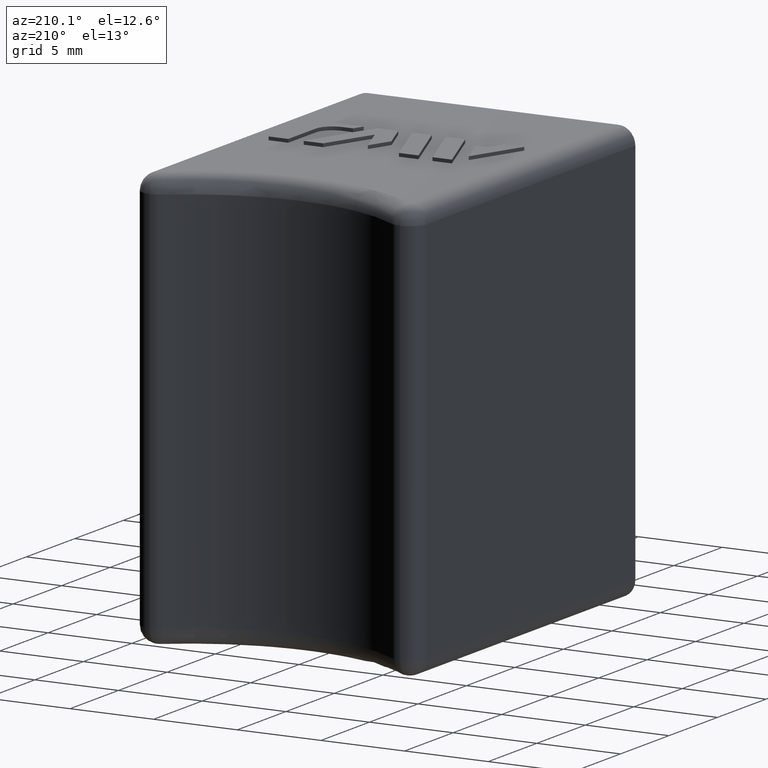
[diagram: clean part render]
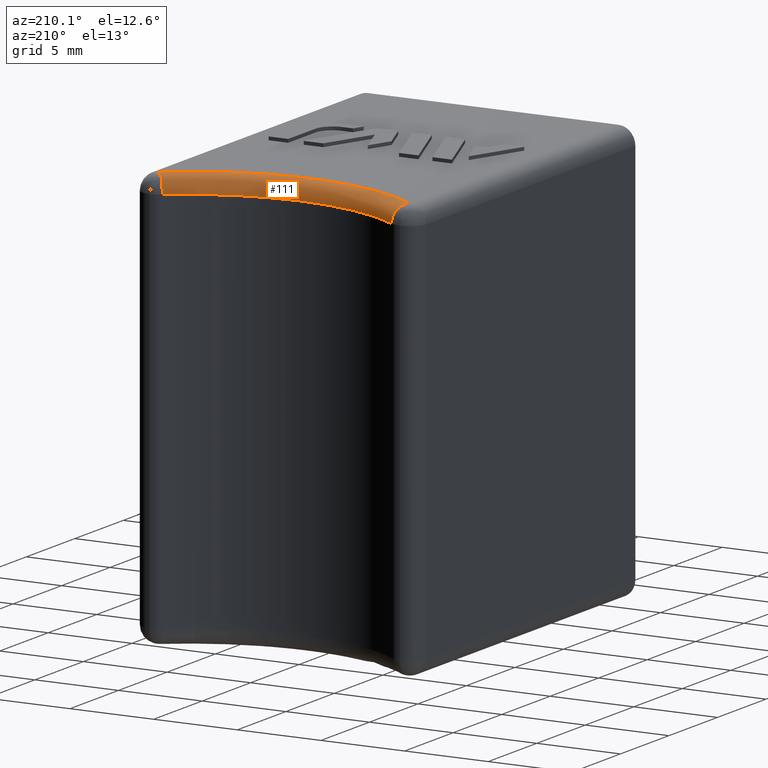
[diagram: same view with one face highlighted and labeled with its STEP entity id]
A machine part, auxiliary view. The second image highlights one B-rep face of the part: STEP entity #111.
In plain terms, the highlighted toroidal blend (fillet) surface has major radius 12.36 mm and minor (blend) radius 1 mm.
Its self-contained STEP definition (entity closure, byte-faithful):
#111 = ADVANCED_FACE( '', ( #306 ), #307, .T. );
#306 = FACE_OUTER_BOUND( '', #604, .T. );
#307 = TOROIDAL_SURFACE( '', #605, 12.3600000000000, 1.00000000000000 );
#604 = EDGE_LOOP( '', ( #1165, #1166, #1167, #1168 ) );
#605 = AXIS2_PLACEMENT_3D( '', #1169, #1170, #1171 );
#1165 = ORIENTED_EDGE( '', *, *, #2089, .T. );
#1166 = ORIENTED_EDGE( '', *, *, #2064, .F. );
#1167 = ORIENTED_EDGE( '', *, *, #2091, .F. );
#1168 = ORIENTED_EDGE( '', *, *, #1932, .F. );
#1169 = CARTESIAN_POINT( '', ( 0.000000000000000, 31.3600000000000, 11.5000000000000 ) );
#1170 = DIRECTION( '', ( 0.000000000000000, 0.000000000000000, -1.00000000000000 ) );
#1171 = DIRECTION( '', ( -1.00000000000000, 0.000000000000000, 0.000000000000000 ) );
#1932 = EDGE_CURVE( '', #2296, #2297, #2298, .T. );
#2064 = EDGE_CURVE( '', #2506, #2537, #2538, .F. );
#2089 = EDGE_CURVE( '', #2296, #2537, #2575, .F. );
#2091 = EDGE_CURVE( '', #2297, #2506, #2577, .T. );
#2296 = VERTEX_POINT( '', #2874 );
#2297 = VERTEX_POINT( '', #2875 );
#2298 = CIRCLE( '', #2876, 12.3600000000000 );
#2506 = VERTEX_POINT( '', #3178 );
#2537 = VERTEX_POINT( '', #3220 );
#2538 = CIRCLE( '', #3221, 11.3600000000000 );
#2575 = CIRCLE( '', #3272, 1.00000000000000 );
#2577 = CIRCLE( '', #3274, 1.00000000000000 );
#2874 = CARTESIAN_POINT( '', ( 7.45318723768588, 21.5000000000000, 12.5000000000000 ) );
#2875 = CARTESIAN_POINT( '', ( -7.45318723768588, 21.5000000000002, 12.5000000000000 ) );
#2876 = AXIS2_PLACEMENT_3D( '', #3638, #3639, #3640 );
#3178 = CARTESIAN_POINT( '', ( -6.85017856149749, 22.2977346278317, 11.5000000000000 ) );
#3220 = CARTESIAN_POINT( '', ( 6.85017856149749, 22.2977346278317, 11.5000000000000 ) );
#3221 = AXIS2_PLACEMENT_3D( '', #3824, #3825, #3826 );
#3272 = AXIS2_PLACEMENT_3D( '', #3871, #3872, #3873 );
#3274 = AXIS2_PLACEMENT_3D( '', #3877, #3878, #3879 );
#3638 = CARTESIAN_POINT( '', ( 0.000000000000000, 31.3600000000000, 12.5000000000000 ) );
#3639 = DIRECTION( '', ( 0.000000000000000, 0.000000000000000, -1.00000000000000 ) );
#3640 = DIRECTION( '', ( -1.00000000000000, 0.000000000000000, 0.000000000000000 ) );
#3824 = CARTESIAN_POINT( '', ( 0.000000000000000, 31.3600000000000, 11.5000000000000 ) );
#3825 = DIRECTION( '', ( 0.000000000000000, 0.000000000000000, -1.00000000000000 ) );
#3826 = DIRECTION( '', ( -1.00000000000000, 0.000000000000000, 0.000000000000000 ) );
#3871 = CARTESIAN_POINT( '', ( 7.45318723768565, 21.5000000000000, 11.5000000000000 ) );
#3872 = DIRECTION( '', ( 0.797734627831715, 0.603008676188159, -2.91779072671086E-013 ) );
#3873 = DIRECTION( '', ( -0.603008676188159, 0.797734627831715, 0.000000000000000 ) );
#3877 = CARTESIAN_POINT( '', ( -7.45318723768588, 21.5000000000002, 11.5000000000000 ) );
#3878 = DIRECTION( '', ( -0.797734627831539, 0.603008676188391, 0.000000000000000 ) );
#3879 = DIRECTION( '', ( -0.603008676188391, -0.797734627831539, 0.000000000000000 ) );